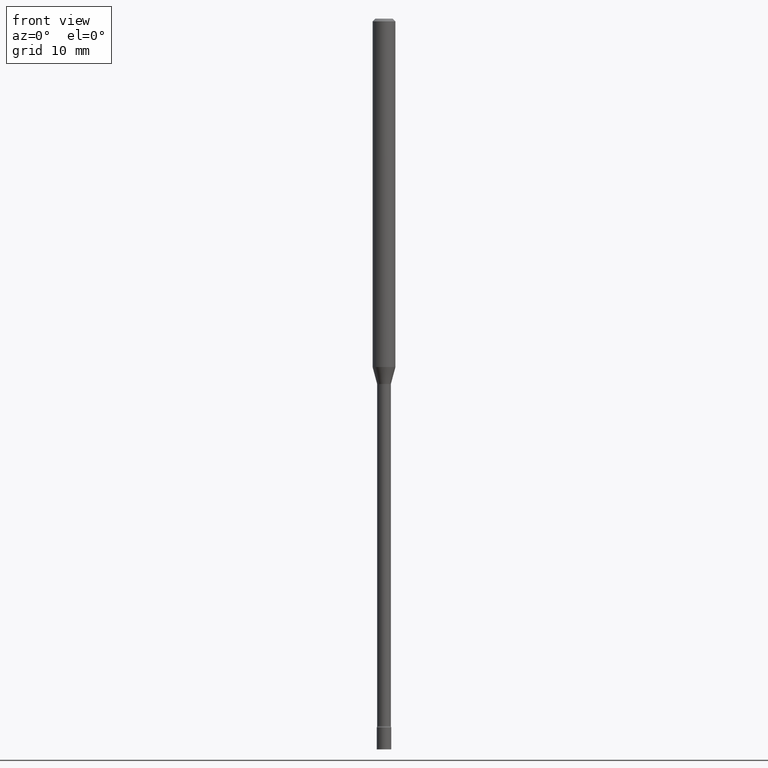
[diagram: clean part render]
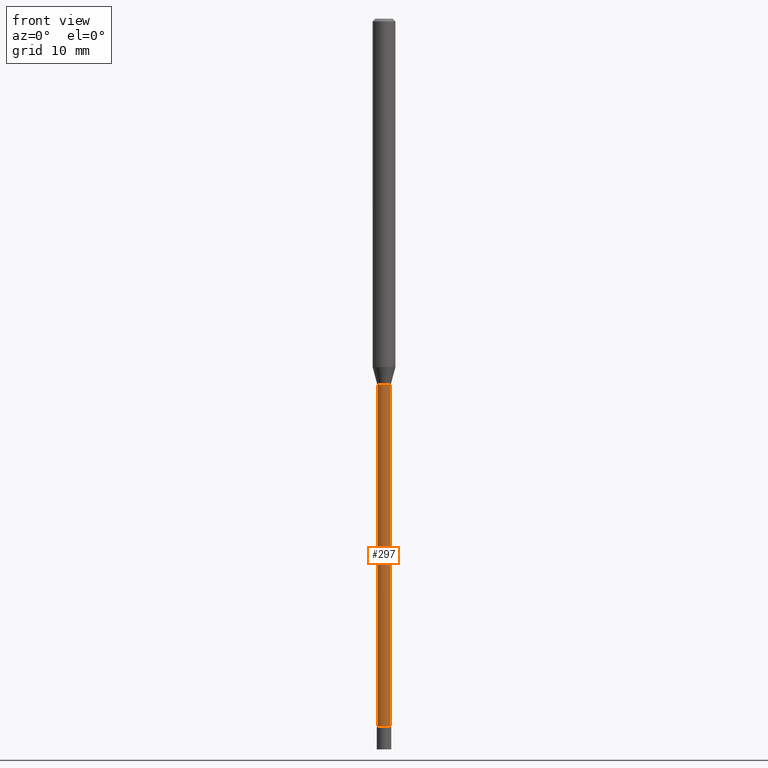
[diagram: same view with one face highlighted and labeled with its STEP entity id]
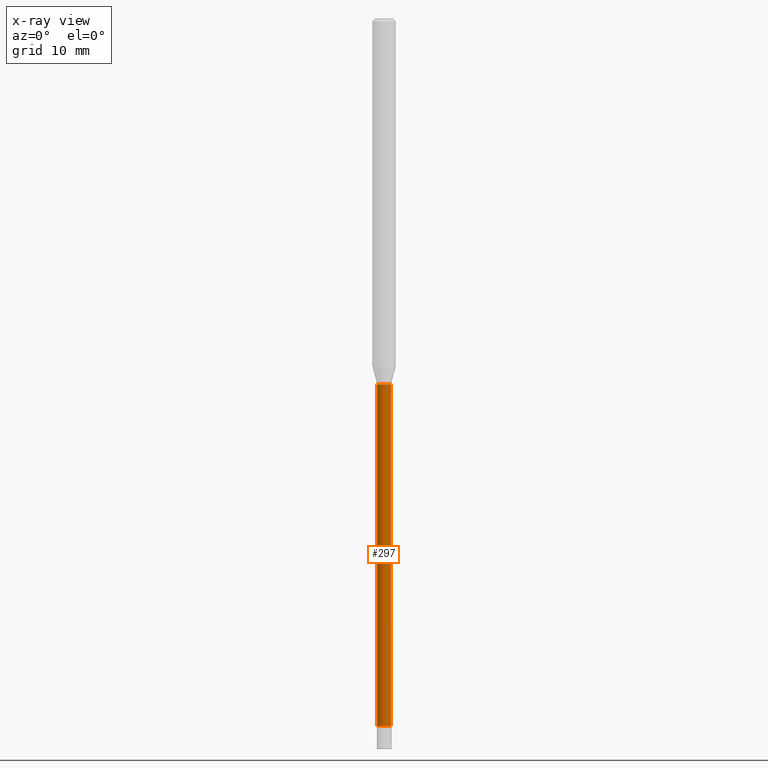
[diagram: x-ray of the same camera — body ghosted, the highlighted face saturated]
A machine part, front view. The second image highlights one B-rep face of the part: STEP entity #297.
The next image is the same camera in x-ray: the body ghosted, the highlighted face saturated — about 0% of this face is hidden behind the body in this view.
In plain terms, the highlighted cylindrical surface (edge-blend (fillet) strip) has radius 0.955 mm, axis along (-0, 0, 1).
Its self-contained STEP definition (entity closure, byte-faithful):
#2 = VECTOR ( 'NONE', #272, 39.37007874015748143 ) ;
#3 = ORIENTED_EDGE ( 'NONE', *, *, #23, .T. ) ;
#23 = EDGE_CURVE ( 'NONE', #290, #414, #355, .T. ) ;
#38 = VECTOR ( 'NONE', #63, 39.37007874015748143 ) ;
#48 = ORIENTED_EDGE ( 'NONE', *, *, #299, .T. ) ;
#63 = DIRECTION ( 'NONE',  ( -2.445468806185136877E-29, 3.491481338843145188E-15, 1.000000000000000000 ) ) ;
#70 = EDGE_CURVE ( 'NONE', #128, #414, #361, .T. ) ;
#84 = CARTESIAN_POINT ( 'NONE',  ( -0.03759999999999999454, -9.987030307200107072E-15, -2.001974787463811190 ) ) ;
#119 = DIRECTION ( 'NONE',  ( -2.445468806185136597E-29, 3.491481338843145583E-15, 1.000000000000000000 ) ) ;
#127 = CARTESIAN_POINT ( 'NONE',  ( 0.000000000000000000, 0.000000000000000000, 0.000000000000000000 ) ) ;
#128 = VERTEX_POINT ( 'NONE', #84 ) ;
#133 = AXIS2_PLACEMENT_3D ( 'NONE', #425, #298, #261 ) ;
#153 = VERTEX_POINT ( 'NONE', #167 ) ;
#156 = CARTESIAN_POINT ( 'NONE',  ( 0.03760000000000024434, -1.378109053710846187E-14, -3.871861204020250025 ) ) ;
#167 = CARTESIAN_POINT ( 'NONE',  ( -0.03760000000000024434, -1.325704878609451034E-14, -3.871861204020250025 ) ) ;
#168 = ORIENTED_EDGE ( 'NONE', *, *, #480, .F. ) ;
#179 = CARTESIAN_POINT ( 'NONE',  ( 0.03760000000000011944, -2.625593966810044412E-16, 1.833442467699277718E-30 ) ) ;
#194 = EDGE_LOOP ( 'NONE', ( #168, #48, #3, #482 ) ) ;
#261 = DIRECTION ( 'NONE',  ( 1.000000000000000000, -6.982962677686261977E-15, 0.000000000000000000 ) ) ;
#267 = AXIS2_PLACEMENT_3D ( 'NONE', #477, #119, #278 ) ;
#272 = DIRECTION ( 'NONE',  ( -2.445468806185136877E-29, 3.491481338843145188E-15, 1.000000000000000000 ) ) ;
#278 = DIRECTION ( 'NONE',  ( 1.000000000000000000, -6.982962677686266711E-15, 0.000000000000000000 ) ) ;
#284 = FACE_OUTER_BOUND ( 'NONE', #194, .T. ) ;
#290 = VERTEX_POINT ( 'NONE', #156 ) ;
#297 = ADVANCED_FACE ( 'NONE', ( #284 ), #487, .T. ) ;
#298 = DIRECTION ( 'NONE',  ( -2.445468806185136597E-29, 3.491481338843145583E-15, 1.000000000000000000 ) ) ;
#299 = EDGE_CURVE ( 'NONE', #153, #290, #469, .T. ) ;
#311 = CARTESIAN_POINT ( 'NONE',  ( -0.03760000000000011944, 2.671640686457985185E-16, -1.849519593935850532E-30 ) ) ;
#320 = DIRECTION ( 'NONE',  ( 1.000000000000000000, -6.982962677686265922E-15, 4.876176775795935793E-29 ) ) ;
#344 = CARTESIAN_POINT ( 'NONE',  ( 0.03759999999999999454, -7.252417007945371703E-15, -2.001974787463811190 ) ) ;
#355 = LINE ( 'NONE', #179, #38 ) ;
#361 = CIRCLE ( 'NONE', #133, 0.03759999999999999454 ) ;
#399 = AXIS2_PLACEMENT_3D ( 'NONE', #127, #447, #320 ) ;
#414 = VERTEX_POINT ( 'NONE', #344 ) ;
#425 = CARTESIAN_POINT ( 'NONE',  ( 4.895766893511868006E-29, -6.989857611264368100E-15, -2.001974787463811190 ) ) ;
#447 = DIRECTION ( 'NONE',  ( -2.445468806185136597E-29, 3.491481338843145583E-15, 1.000000000000000000 ) ) ;
#469 = CIRCLE ( 'NONE', #267, 0.03760000000000024434 ) ;
#477 = CARTESIAN_POINT ( 'NONE',  ( 9.468515796309946539E-29, -1.351853114042745669E-14, -3.871861204020250025 ) ) ;
#480 = EDGE_CURVE ( 'NONE', #153, #128, #508, .T. ) ;
#482 = ORIENTED_EDGE ( 'NONE', *, *, #70, .F. ) ;
#487 = CYLINDRICAL_SURFACE ( 'NONE', #399, 0.03760000000000011944 ) ;
#508 = LINE ( 'NONE', #311, #2 ) ;